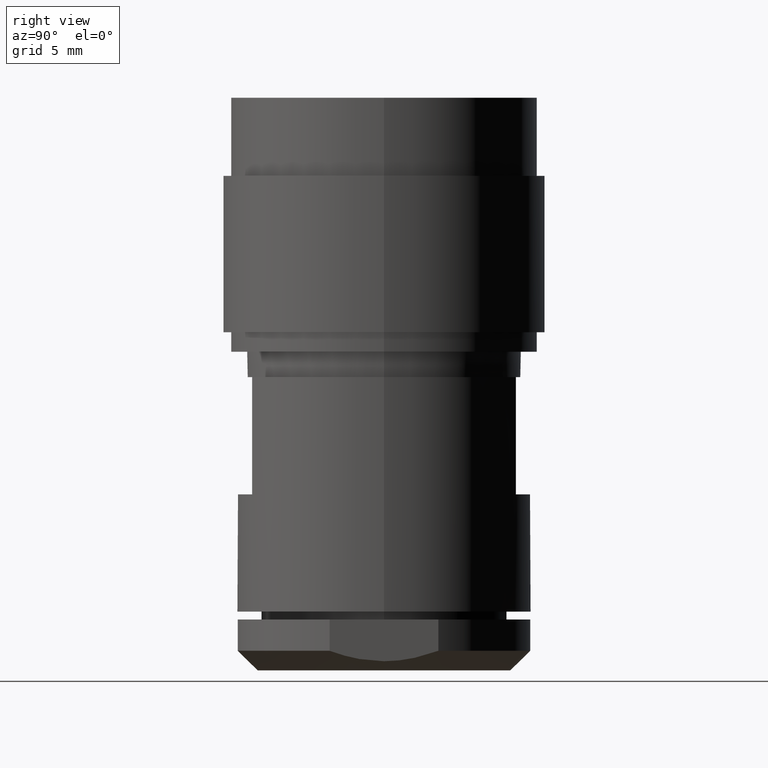
[diagram: clean part render]
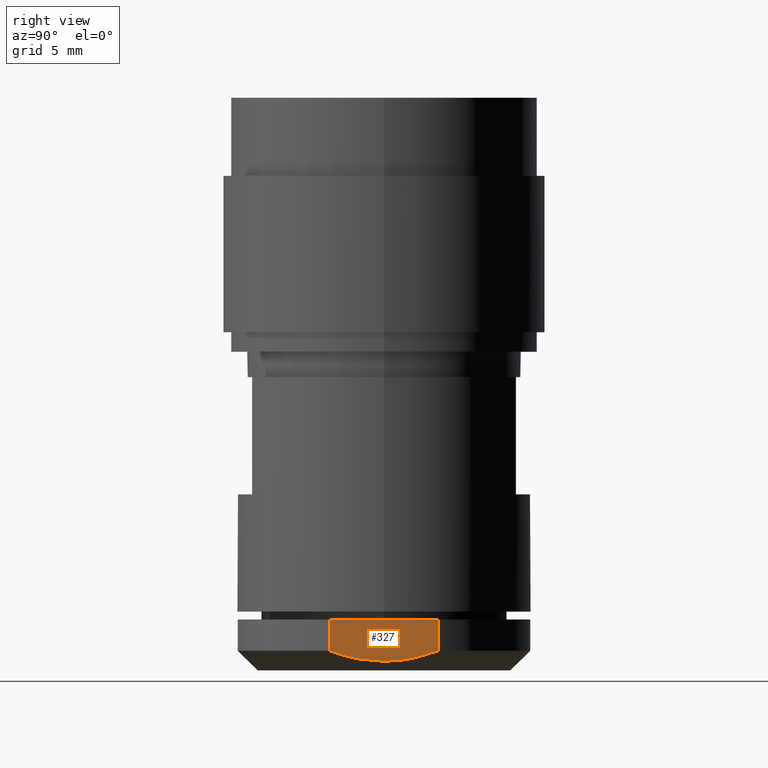
[diagram: same view with one face highlighted and labeled with its STEP entity id]
A machine part, right view. The second image highlights one B-rep face of the part: STEP entity #327.
In plain terms, the highlighted planar face has unit normal (1, 0, -0).
Its self-contained STEP definition (entity closure, byte-faithful):
#37 = VERTEX_POINT ( 'NONE', #2670 ) ;
#82 = VERTEX_POINT ( 'NONE', #2625 ) ;
#129 = VERTEX_POINT ( 'NONE', #2578 ) ;
#159 = VERTEX_POINT ( 'NONE', #2548 ) ;
#163 = VERTEX_POINT ( 'NONE', #2544 ) ;
#327 = ADVANCED_FACE ( 'NONE', ( #1987 ), #2349, .T. ) ;
#592 = VECTOR ( 'NONE', #3012, 39.37007874015748100 ) ;
#594 = LINE ( 'NONE', #3015, #592 ) ;
#597 = VECTOR ( 'NONE', #3013, 39.37007874015748100 ) ;
#602 = VECTOR ( 'NONE', #2998, 39.37007874015748100 ) ;
#603 = LINE ( 'NONE', #3007, #597 ) ;
#610 = LINE ( 'NONE', #3002, #602 ) ;
#729 = B_SPLINE_CURVE_WITH_KNOTS ( 'NONE', 3,
 ( #3125, #3124, #3119, #3118, #3117, #3116 ),
 .UNSPECIFIED., .F., .F.,
 ( 4, 2, 4 ),
 ( 0.01065268947132110500, 0.01243927456443809400, 0.01422585965755508000 ),
 .UNSPECIFIED. ) ;
#730 = B_SPLINE_CURVE_WITH_KNOTS ( 'NONE', 3,
 ( #2800, #2799, #2805, #2808, #2810, #2811, #2812, #2813, #2814, #2815 ),
 .UNSPECIFIED., .F., .F.,
 ( 4, 2, 2, 2, 4 ),
 ( 0.007074013139624080200, 0.007968682222548336900, 0.008863351305472593600, 0.009758020388396848600, 0.01065268947132110500 ),
 .UNSPECIFIED. ) ;
#921 = AXIS2_PLACEMENT_3D ( 'NONE', #2354, #2346, #2345 ) ;
#1038 = EDGE_CURVE ( 'NONE', #159, #129, #730, .T. ) ;
#1100 = EDGE_CURVE ( 'NONE', #37, #163, #610, .T. ) ;
#1103 = EDGE_CURVE ( 'NONE', #163, #82, #603, .T. ) ;
#1106 = EDGE_CURVE ( 'NONE', #37, #159, #594, .T. ) ;
#1109 = EDGE_CURVE ( 'NONE', #129, #82, #729, .T. ) ;
#1536 = ORIENTED_EDGE ( 'NONE', *, *, #1038, .F. ) ;
#1596 = ORIENTED_EDGE ( 'NONE', *, *, #1103, .T. ) ;
#1636 = EDGE_LOOP ( 'NONE', ( #1754, #1773, #1596, #1770, #1536 ) ) ;
#1754 = ORIENTED_EDGE ( 'NONE', *, *, #1106, .F. ) ;
#1770 = ORIENTED_EDGE ( 'NONE', *, *, #1109, .F. ) ;
#1773 = ORIENTED_EDGE ( 'NONE', *, *, #1100, .T. ) ;
#1987 = FACE_OUTER_BOUND ( 'NONE', #1636, .T. ) ;
#2345 = DIRECTION ( 'NONE',  ( -0.0000000000000000000, 0.0000000000000000000, -1.000000000000000000 ) ) ;
#2346 = DIRECTION ( 'NONE',  ( 1.000000000000000000, 0.0000000000000000000, -0.0000000000000000000 ) ) ;
#2349 = PLANE ( 'NONE',  #921 ) ;
#2354 = CARTESIAN_POINT ( 'NONE',  ( 0.3482228626320788600, 0.1391611940891579500, 0.1300000000000000000 ) ) ;
#2544 = CARTESIAN_POINT ( 'NONE',  ( 0.3482228626320788600, -0.1391611940891579500, 0.1300000000000000000 ) ) ;
#2548 = CARTESIAN_POINT ( 'NONE',  ( 0.3482228626320788600, 0.1391611940891580000, 0.05000000000000004400 ) ) ;
#2578 = CARTESIAN_POINT ( 'NONE',  ( 0.3482228626320788600, 1.545461747470717800E-022, 0.02322286263207900800 ) ) ;
#2625 = CARTESIAN_POINT ( 'NONE',  ( 0.3482228626320788600, -0.1391611940891580900, 0.05000000000000007900 ) ) ;
#2670 = CARTESIAN_POINT ( 'NONE',  ( 0.3482228626320788600, 0.1391611940891580000, 0.1300000000000000000 ) ) ;
#2799 = CARTESIAN_POINT ( 'NONE',  ( 0.3482228626320788000, 0.1280004829735484900, 0.04585829897137819200 ) ) ;
#2800 = CARTESIAN_POINT ( 'NONE',  ( 0.3482228626320788600, 0.1391611940891580000, 0.05000000000000004400 ) ) ;
#2805 = CARTESIAN_POINT ( 'NONE',  ( 0.3482228626320789700, 0.1166437392942080600, 0.04207740028234074200 ) ) ;
#2808 = CARTESIAN_POINT ( 'NONE',  ( 0.3482228626320788000, 0.09384149992112170200, 0.03548062775820912800 ) ) ;
#2810 = CARTESIAN_POINT ( 'NONE',  ( 0.3482228626320788600, 0.08235309991828498900, 0.03264824605247169900 ) ) ;
#2811 = CARTESIAN_POINT ( 'NONE',  ( 0.3482228626320788000, 0.05917968524236524200, 0.02803324203769217200 ) ) ;
#2812 = CARTESIAN_POINT ( 'NONE',  ( 0.3482228626320788600, 0.04749460153899322900, 0.02625098829318518400 ) ) ;
#2813 = CARTESIAN_POINT ( 'NONE',  ( 0.3482228626320788600, 0.02390738258227601000, 0.02384535620175151600 ) ) ;
#2814 = CARTESIAN_POINT ( 'NONE',  ( 0.3482228626320788600, 0.01195845311816335300, 0.02322286263207898700 ) ) ;
#2815 = CARTESIAN_POINT ( 'NONE',  ( 0.3482228626320788600, 1.545461747470717800E-022, 0.02322286263207900800 ) ) ;
#2998 = DIRECTION ( 'NONE',  ( 0.0000000000000000000, -1.000000000000000000, 0.0000000000000000000 ) ) ;
#3002 = CARTESIAN_POINT ( 'NONE',  ( 0.3482228626320788600, 0.1391611940891579500, 0.1300000000000000000 ) ) ;
#3007 = CARTESIAN_POINT ( 'NONE',  ( 0.3482228626320788600, -0.1391611940891579500, 0.1300000000000000000 ) ) ;
#3012 = DIRECTION ( 'NONE',  ( -0.0000000000000000000, -0.0000000000000000000, -1.000000000000000000 ) ) ;
#3013 = DIRECTION ( 'NONE',  ( -0.0000000000000000000, -0.0000000000000000000, -1.000000000000000000 ) ) ;
#3015 = CARTESIAN_POINT ( 'NONE',  ( 0.3482228626320788600, 0.1391611940891580000, 0.1300000000000000000 ) ) ;
#3116 = CARTESIAN_POINT ( 'NONE',  ( 0.3482228626320788600, -0.1391611940891580900, 0.05000000000000007900 ) ) ;
#3117 = CARTESIAN_POINT ( 'NONE',  ( 0.3482228626320788600, -0.1169853836556421100, 0.04177063397380431600 ) ) ;
#3118 = CARTESIAN_POINT ( 'NONE',  ( 0.3482228626320788000, -0.09394753906115008200, 0.03495236362540771200 ) ) ;
#3119 = CARTESIAN_POINT ( 'NONE',  ( 0.3482228626320789700, -0.04742832157722461100, 0.02569788945972293800 ) ) ;
#3124 = CARTESIAN_POINT ( 'NONE',  ( 0.3482228626320788000, -0.02388010772409554500, 0.02322286263207898700 ) ) ;
#3125 = CARTESIAN_POINT ( 'NONE',  ( 0.3482228626320788600, 1.545461747470717800E-022, 0.02322286263207900800 ) ) ;